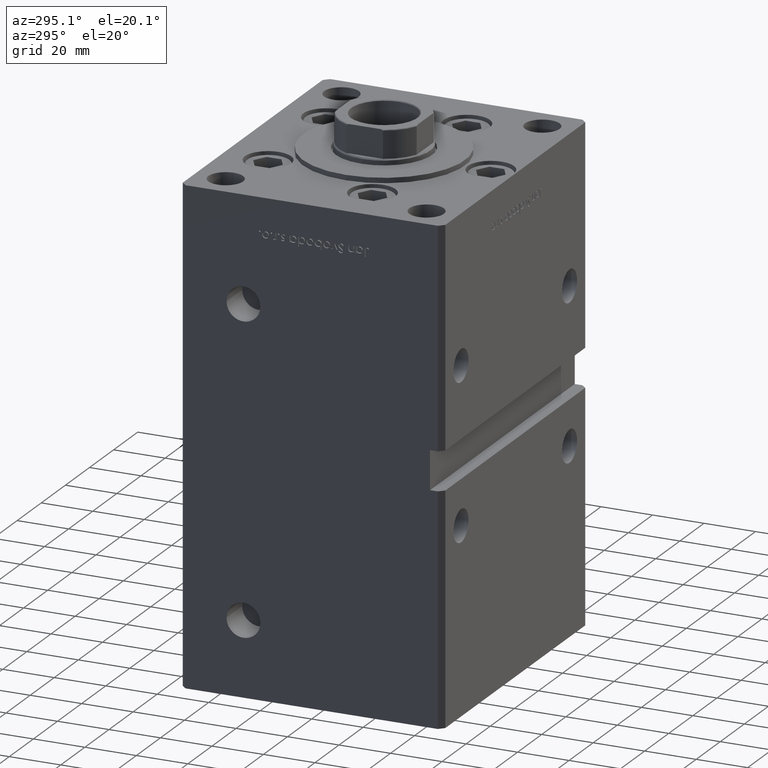
[diagram: clean part render]
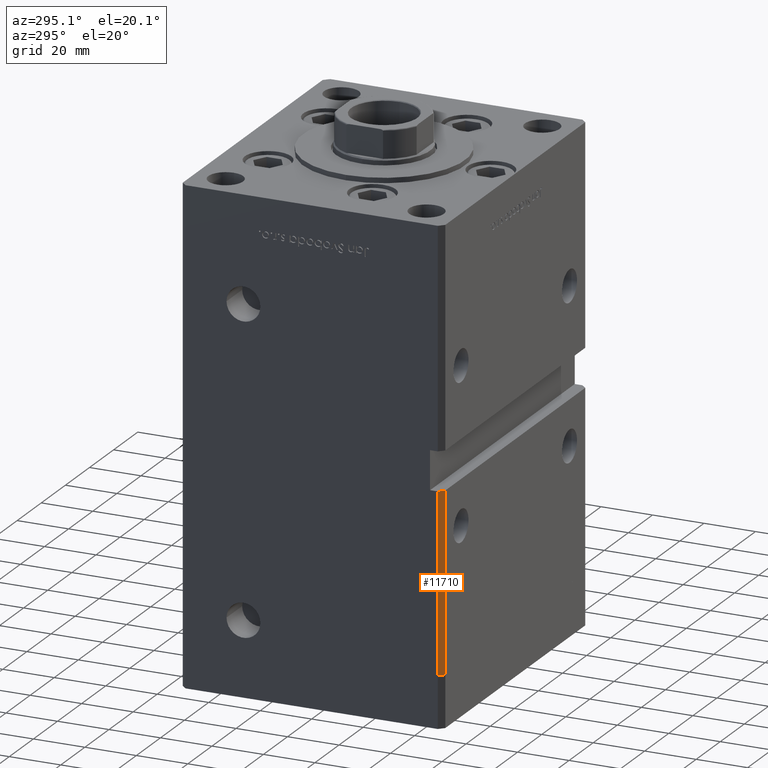
[diagram: same view with one face highlighted and labeled with its STEP entity id]
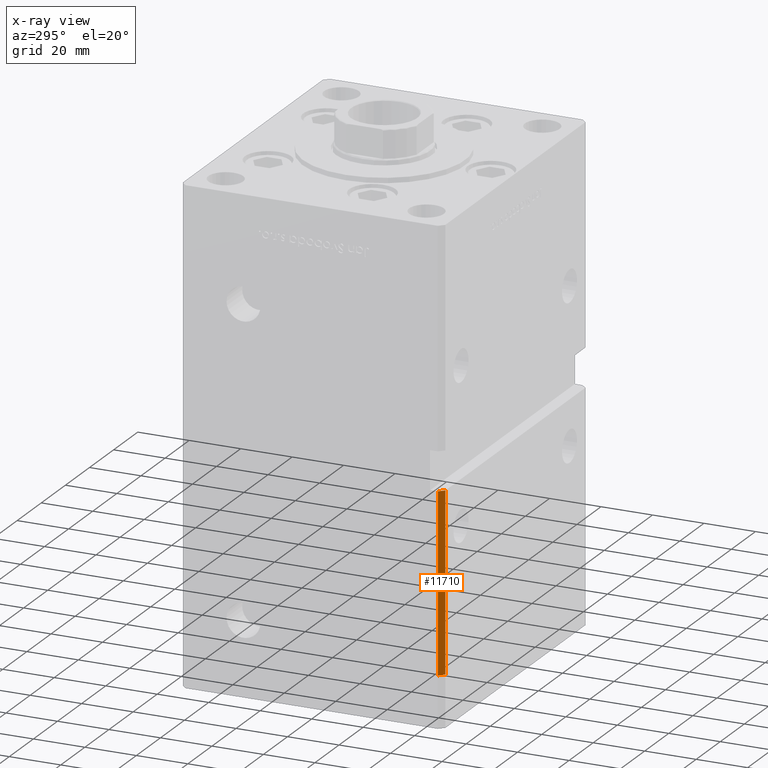
[diagram: x-ray of the same camera — body ghosted, the highlighted face saturated]
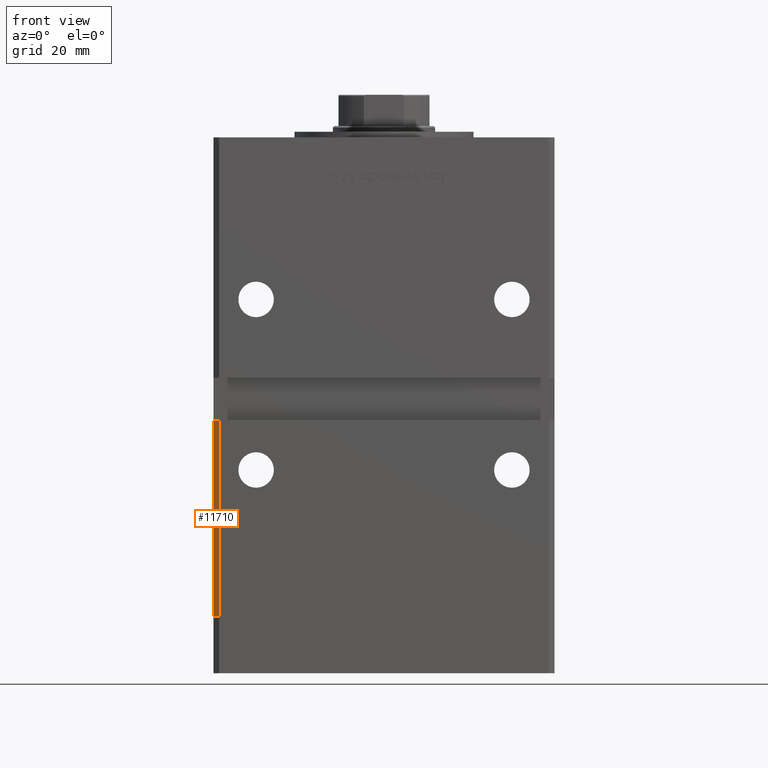
[diagram: same view with one face highlighted and labeled with its STEP entity id]
A machine part, auxiliary view. The second image highlights one B-rep face of the part: STEP entity #11710.
The next image is the same camera in x-ray: the body ghosted, the highlighted face saturated — about 0% of this face is hidden behind the body in this view.
A second angle (front view) of the same face is appended — the face is thin or edge-on in the first view.
In plain terms, the highlighted planar face has unit normal (0.7071, 0.7071, 0).
Its self-contained STEP definition (entity closure, byte-faithful):
#145 = DIRECTION ( 'NONE',  ( -0.7071067811865474617, 0.7071067811865474617, 0.000000000000000000 ) ) ;
#177 = CARTESIAN_POINT ( 'NONE',  ( -57.99999999999997868, -50.99999999999999289, 0.000000000000000000 ) ) ;
#772 = DIRECTION ( 'NONE',  ( 0.7071067811865474617, -0.7071067811865474617, 0.000000000000000000 ) ) ;
#3101 = VECTOR ( 'NONE', #41869, 1000.000000000000000 ) ;
#3640 = CARTESIAN_POINT ( 'NONE',  ( -59.99999999999998579, -48.99999999999998579, 148.5000000000000000 ) ) ;
#4211 = DIRECTION ( 'NONE',  ( -0.000000000000000000, -0.000000000000000000, -1.000000000000000000 ) ) ;
#9672 = ORIENTED_EDGE ( 'NONE', *, *, #48194, .T. ) ;
#10888 = ORIENTED_EDGE ( 'NONE', *, *, #47507, .T. ) ;
#11635 = VECTOR ( 'NONE', #37512, 1000.000000000000114 ) ;
#11710 = ADVANCED_FACE ( 'NONE', ( #39891 ), #53023, .F. ) ;
#13206 = AXIS2_PLACEMENT_3D ( 'NONE', #3640, #31814, #145 ) ;
#14138 = LINE ( 'NONE', #21138, #11635 ) ;
#14185 = VERTEX_POINT ( 'NONE', #43508 ) ;
#16290 = CARTESIAN_POINT ( 'NONE',  ( -57.99999999999997868, -50.99999999999999289, 148.5000000000000000 ) ) ;
#16888 = CARTESIAN_POINT ( 'NONE',  ( -59.99999999999998579, -48.99999999999998579, 0.000000000000000000 ) ) ;
#20987 = ORIENTED_EDGE ( 'NONE', *, *, #36425, .T. ) ;
#21138 = CARTESIAN_POINT ( 'NONE',  ( -59.99999999999998579, -48.99999999999998579, 68.99999999999998579 ) ) ;
#24685 = LINE ( 'NONE', #16888, #42149 ) ;
#25512 = CARTESIAN_POINT ( 'NONE',  ( -59.99999999999998579, -48.99999999999998579, 148.5000000000000000 ) ) ;
#28449 = VECTOR ( 'NONE', #4211, 1000.000000000000000 ) ;
#30825 = LINE ( 'NONE', #25512, #3101 ) ;
#31814 = DIRECTION ( 'NONE',  ( 0.7071067811865475727, 0.7071067811865475727, -0.000000000000000000 ) ) ;
#34897 = VERTEX_POINT ( 'NONE', #39038 ) ;
#35909 = VERTEX_POINT ( 'NONE', #177 ) ;
#36425 = EDGE_CURVE ( 'NONE', #14185, #35909, #24685, .T. ) ;
#36693 = LINE ( 'NONE', #16290, #28449 ) ;
#36857 = EDGE_CURVE ( 'NONE', #49377, #35909, #36693, .T. ) ;
#37512 = DIRECTION ( 'NONE',  ( -0.7071067811865474617, 0.7071067811865474617, 0.000000000000000000 ) ) ;
#38324 = ORIENTED_EDGE ( 'NONE', *, *, #36857, .F. ) ;
#39038 = CARTESIAN_POINT ( 'NONE',  ( -59.99999999999998579, -48.99999999999998579, 68.99999999999998579 ) ) ;
#39891 = FACE_OUTER_BOUND ( 'NONE', #51702, .T. ) ;
#41869 = DIRECTION ( 'NONE',  ( -0.000000000000000000, -0.000000000000000000, -1.000000000000000000 ) ) ;
#42149 = VECTOR ( 'NONE', #772, 1000.000000000000114 ) ;
#43508 = CARTESIAN_POINT ( 'NONE',  ( -59.99999999999998579, -48.99999999999998579, 0.000000000000000000 ) ) ;
#47507 = EDGE_CURVE ( 'NONE', #49377, #34897, #14138, .T. ) ;
#48194 = EDGE_CURVE ( 'NONE', #34897, #14185, #30825, .T. ) ;
#49377 = VERTEX_POINT ( 'NONE', #50297 ) ;
#50297 = CARTESIAN_POINT ( 'NONE',  ( -57.99999999999997868, -50.99999999999999289, 68.99999999999998579 ) ) ;
#51702 = EDGE_LOOP ( 'NONE', ( #38324, #10888, #9672, #20987 ) ) ;
#53023 = PLANE ( 'NONE',  #13206 ) ;